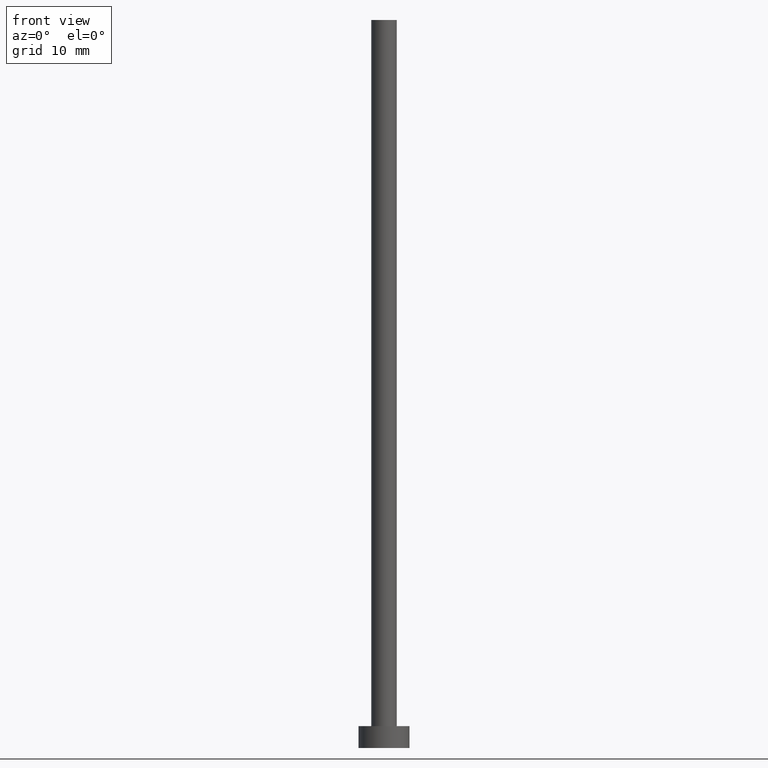
[diagram: clean part render]
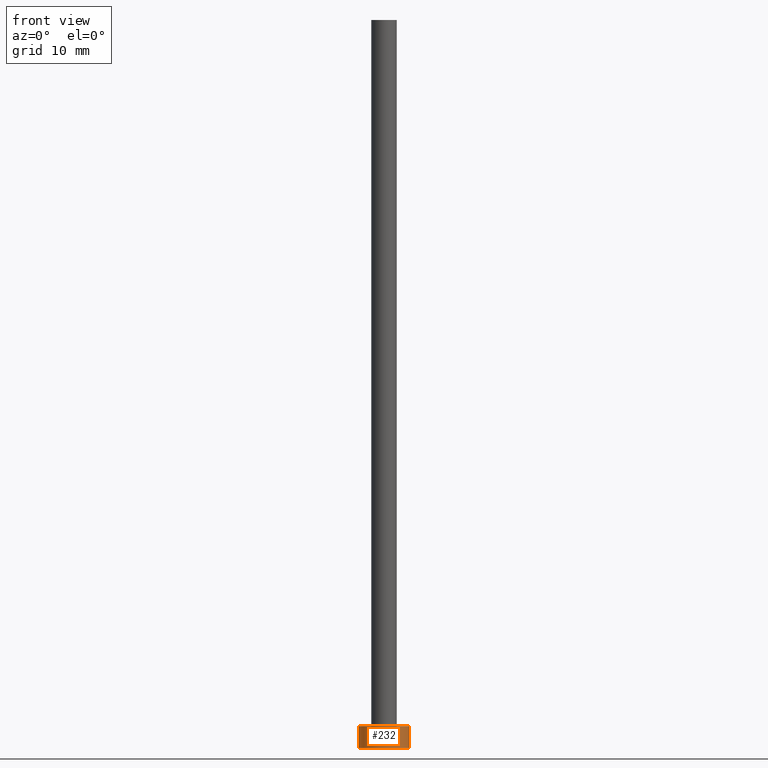
[diagram: same view with one face highlighted and labeled with its STEP entity id]
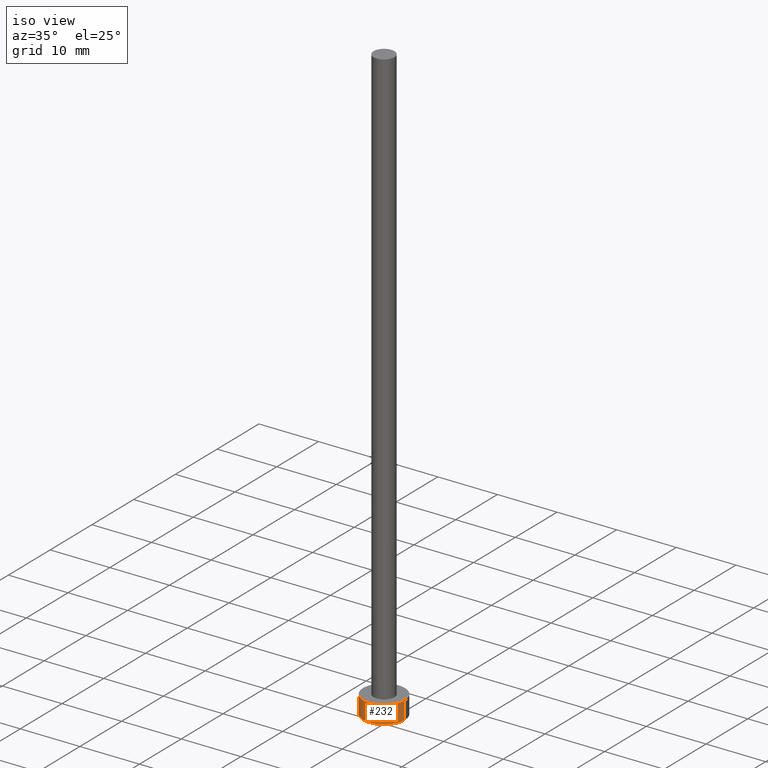
[diagram: same view with one face highlighted and labeled with its STEP entity id]
A machine part, front view. The second image highlights one B-rep face of the part: STEP entity #232.
A second angle (iso view) of the same face is appended — the face is thin or edge-on in the first view.
In plain terms, the highlighted cylindrical surface (edge-blend (fillet) strip) has radius 3.5 mm, axis along (-0, -0, -1).
Its self-contained STEP definition (entity closure, byte-faithful):
#10 = CARTESIAN_POINT ( 'NONE',  ( 0.000000000000000000, 0.000000000000000000, 3.000000000000000000 ) ) ;
#13 = EDGE_CURVE ( 'NONE', #233, #201, #217, .T. ) ;
#17 = DIRECTION ( 'NONE',  ( -1.000000000000000000, 0.000000000000000000, 0.000000000000000000 ) ) ;
#34 = CYLINDRICAL_SURFACE ( 'NONE', #164, 3.500000000000000000 ) ;
#36 = CARTESIAN_POINT ( 'NONE',  ( 3.500000000000000000, 4.286263797015736595E-16, 3.000000000000000000 ) ) ;
#38 = CARTESIAN_POINT ( 'NONE',  ( 0.000000000000000000, 0.000000000000000000, 0.000000000000000000 ) ) ;
#67 = DIRECTION ( 'NONE',  ( 1.000000000000000000, 0.000000000000000000, 0.000000000000000000 ) ) ;
#73 = VERTEX_POINT ( 'NONE', #117 ) ;
#74 = EDGE_CURVE ( 'NONE', #73, #201, #213, .T. ) ;
#83 = DIRECTION ( 'NONE',  ( -0.000000000000000000, -0.000000000000000000, -1.000000000000000000 ) ) ;
#87 = CIRCLE ( 'NONE', #134, 3.500000000000000000 ) ;
#88 = LINE ( 'NONE', #148, #168 ) ;
#99 = FACE_OUTER_BOUND ( 'NONE', #140, .T. ) ;
#112 = EDGE_CURVE ( 'NONE', #209, #73, #88, .T. ) ;
#114 = VECTOR ( 'NONE', #83, 1000.000000000000000 ) ;
#117 = CARTESIAN_POINT ( 'NONE',  ( -3.500000000000000000, 0.000000000000000000, 0.000000000000000000 ) ) ;
#130 = DIRECTION ( 'NONE',  ( 0.000000000000000000, 0.000000000000000000, 1.000000000000000000 ) ) ;
#134 = AXIS2_PLACEMENT_3D ( 'NONE', #10, #130, #137 ) ;
#135 = ORIENTED_EDGE ( 'NONE', *, *, #189, .F. ) ;
#137 = DIRECTION ( 'NONE',  ( 1.000000000000000000, 0.000000000000000000, 0.000000000000000000 ) ) ;
#138 = AXIS2_PLACEMENT_3D ( 'NONE', #38, #210, #67 ) ;
#140 = EDGE_LOOP ( 'NONE', ( #153, #135, #228, #230 ) ) ;
#148 = CARTESIAN_POINT ( 'NONE',  ( -3.500000000000000000, 0.000000000000000000, 3.000000000000000000 ) ) ;
#151 = CARTESIAN_POINT ( 'NONE',  ( 3.500000000000000000, 4.286263797015736595E-16, 3.000000000000000000 ) ) ;
#153 = ORIENTED_EDGE ( 'NONE', *, *, #13, .F. ) ;
#164 = AXIS2_PLACEMENT_3D ( 'NONE', #167, #195, #17 ) ;
#167 = CARTESIAN_POINT ( 'NONE',  ( 0.000000000000000000, 0.000000000000000000, 3.000000000000000000 ) ) ;
#168 = VECTOR ( 'NONE', #225, 1000.000000000000000 ) ;
#189 = EDGE_CURVE ( 'NONE', #209, #233, #87, .T. ) ;
#190 = CARTESIAN_POINT ( 'NONE',  ( -3.500000000000000000, 0.000000000000000000, 3.000000000000000000 ) ) ;
#195 = DIRECTION ( 'NONE',  ( -0.000000000000000000, -0.000000000000000000, -1.000000000000000000 ) ) ;
#201 = VERTEX_POINT ( 'NONE', #208 ) ;
#208 = CARTESIAN_POINT ( 'NONE',  ( 3.500000000000000000, 4.286263797015736595E-16, 0.000000000000000000 ) ) ;
#209 = VERTEX_POINT ( 'NONE', #190 ) ;
#210 = DIRECTION ( 'NONE',  ( 0.000000000000000000, 0.000000000000000000, 1.000000000000000000 ) ) ;
#213 = CIRCLE ( 'NONE', #138, 3.500000000000000000 ) ;
#217 = LINE ( 'NONE', #36, #114 ) ;
#225 = DIRECTION ( 'NONE',  ( -0.000000000000000000, -0.000000000000000000, -1.000000000000000000 ) ) ;
#228 = ORIENTED_EDGE ( 'NONE', *, *, #112, .T. ) ;
#230 = ORIENTED_EDGE ( 'NONE', *, *, #74, .T. ) ;
#232 = ADVANCED_FACE ( 'NONE', ( #99 ), #34, .T. ) ;
#233 = VERTEX_POINT ( 'NONE', #151 ) ;